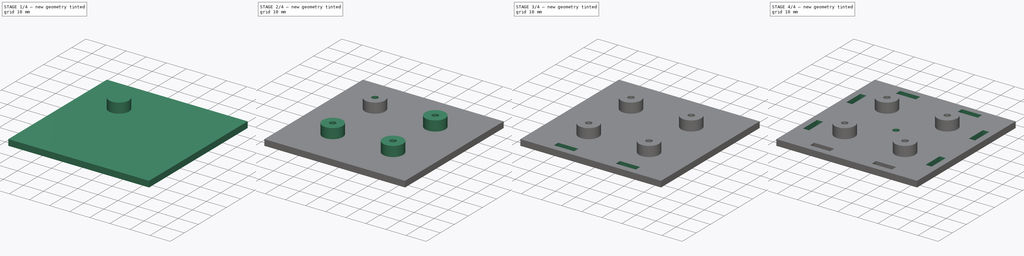
[diagram: build sequence overview — one tinted view per stage of 4, left to right]
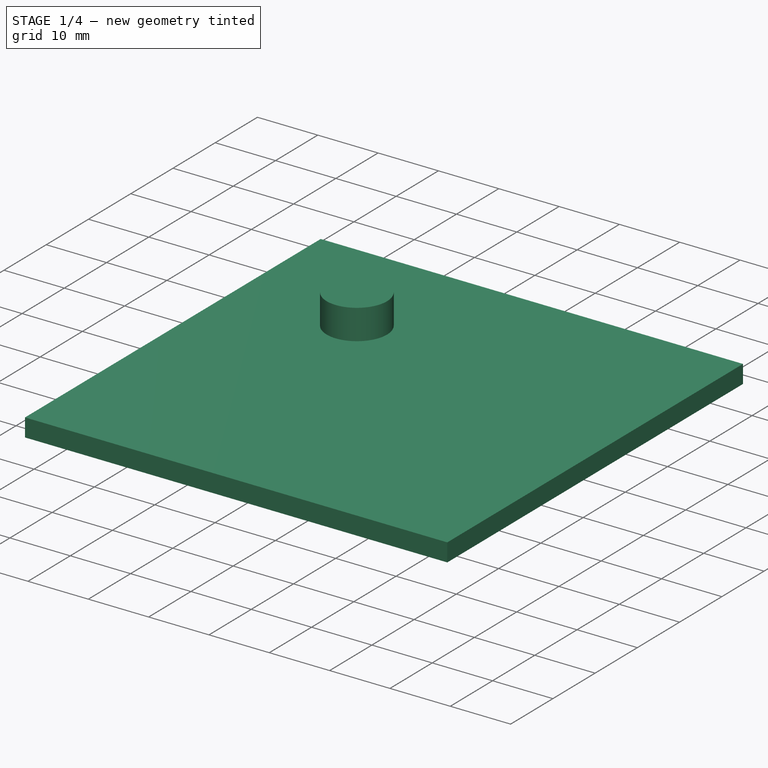
[diagram: stage 1 of 4 — iso view after this stage's code; geometry added in this stage tinted green]
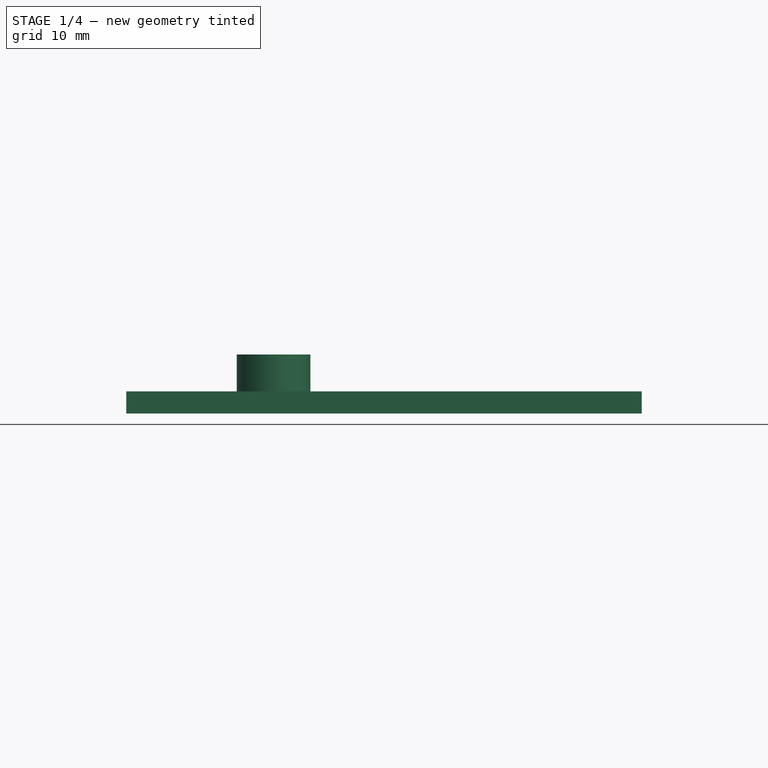
[diagram: stage 1 of 4 — front view after this stage's code; geometry added in this stage tinted green]
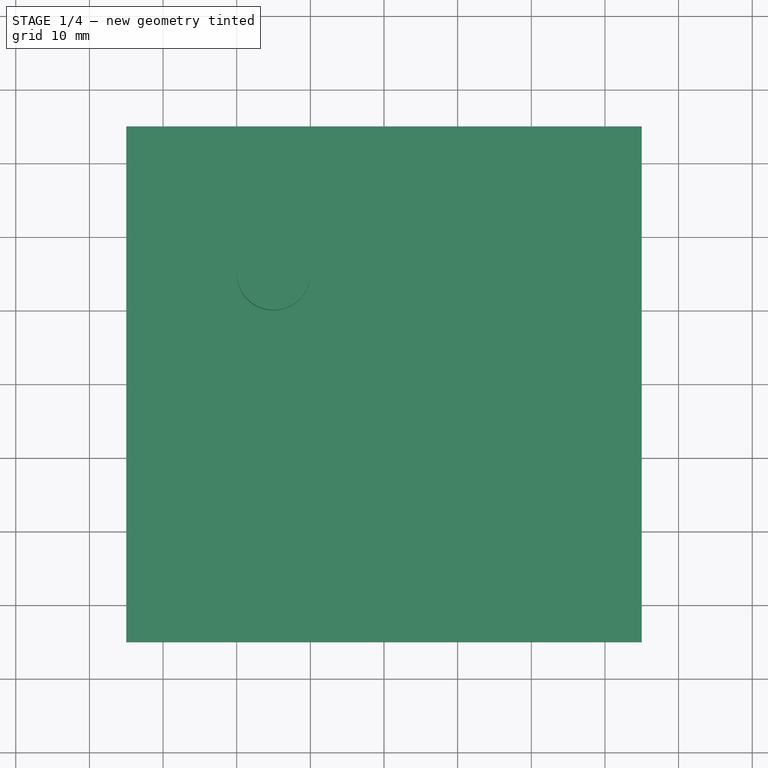
[diagram: stage 1 of 4 — top view after this stage's code; geometry added in this stage tinted green]
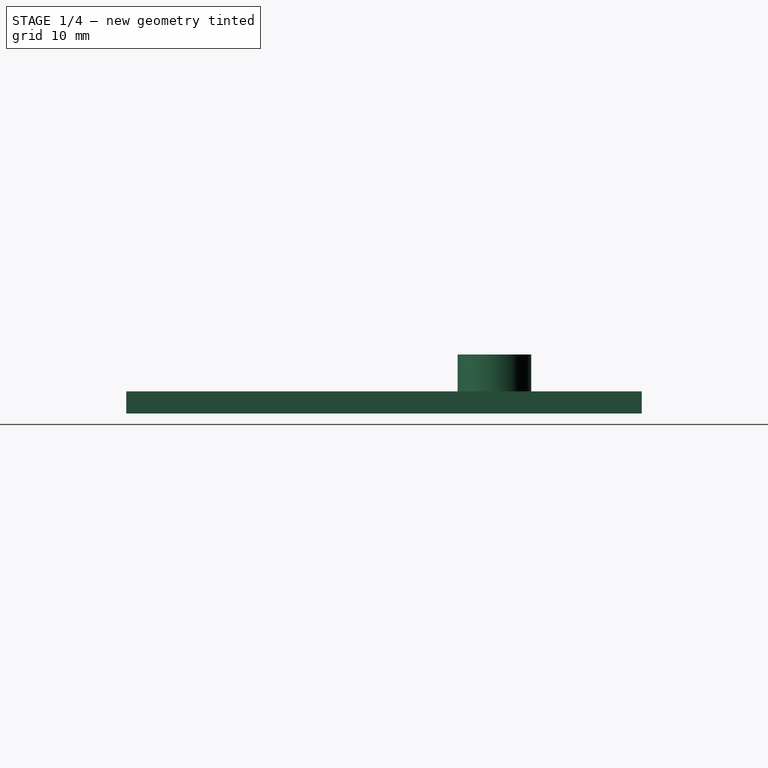
[diagram: stage 1 of 4 — right view after this stage's code; geometry added in this stage tinted green]
FCSTD DOCUMENT  (FreeCAD 0.14R3702 (Git))
Label: base-cuadrada
License: CC-BY 3.0
LicenseURL: http://creativecommons.org/licenses/by/3.0/
objects: Sketcher::SketchObject×6, PartDesign::PolarPattern×4, PartDesign::Pocket×4, Part::Extrusion×1, PartDesign::Pad×1
note: 21 computed .brp shape members not serialized (recipe doc carries the construction recipe); baked Part::Feature solids carry a one-line shape summary decoded from their .brp

FEATURE [Sketcher::SketchObject] Sketch  label="sk-main"
  sketch-geometry (4):
    g0: LineSegment StartX=-35 StartY=35 StartZ=0 EndX=35 EndY=35 EndZ=0
    g1: LineSegment StartX=35 StartY=35 StartZ=0 EndX=35 EndY=-35 EndZ=0
    g2: LineSegment StartX=35 StartY=-35 StartZ=0 EndX=-35 EndY=-35 EndZ=0
    g3: LineSegment StartX=-35 StartY=-35 StartZ=0 EndX=-35 EndY=35 EndZ=0
  constraints (12):
    c: Coincident(g0,g1)
    c: Coincident(g1,g2)
    c: Coincident(g2,g3)
    c: Coincident(g3,g0)
    c: Horizontal(g0)
    c: Horizontal(g2)
    c: Vertical(g1)
    c: Vertical(g3)
    c: Equal(g0,g3)
    c: Symmetric(g0,g0,g-2)
    c: Symmetric(g1,g0,g-1)
    c: DistanceY(g1) = -70
FEATURE [Part::Extrusion] Extrude  label="cuerpo-principal"
  Base = -> Sketch
  Dir = (0,0,3)
  Solid = true
FEATURE [Sketcher::SketchObject] Sketch001  label="sk-separador"
  ExternalGeometry = -> [Extrude]
  Placement = pos=(0,0,3) rot=(0,0,1;0rad)
  Support = -> Extrude [Face6]
  sketch-geometry (1):
    g0: Circle CenterX=-15 CenterY=15 CenterZ=0 NormalX=0 NormalY=0 NormalZ=1 Radius=5
  constraints (3):
    c: Radius(g0) = 5
    c: Distance(g0,g-3) = 20
    c: Distance(g0,g-4) = 20
FEATURE [PartDesign::Pad] Pad  label="pad-separador"
  Length = 5
  Length2 = 5
  Sketch = -> Sketch001
  Type = 0
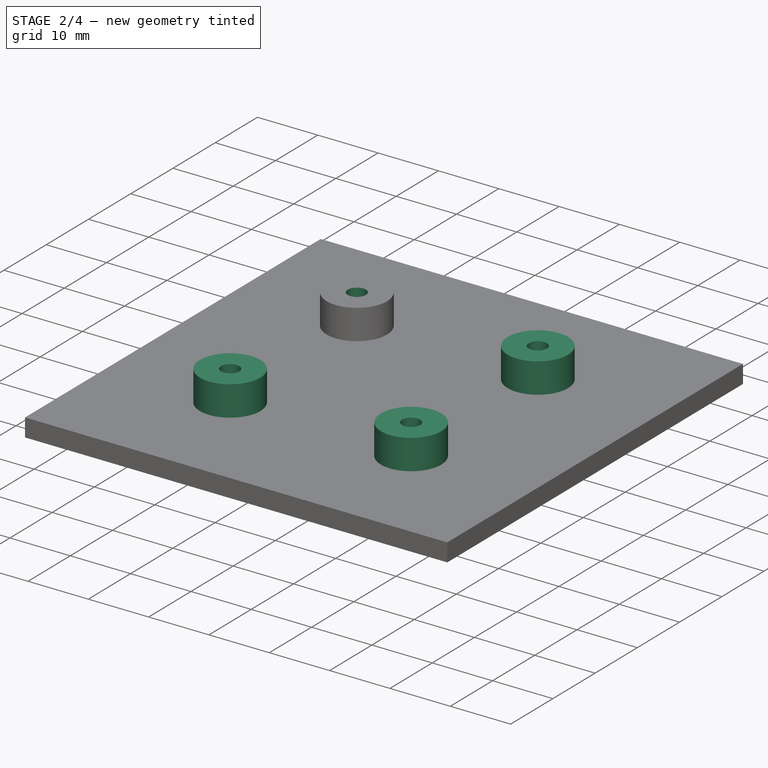
[diagram: stage 2 of 4 — iso view after this stage's code; geometry added in this stage tinted green]
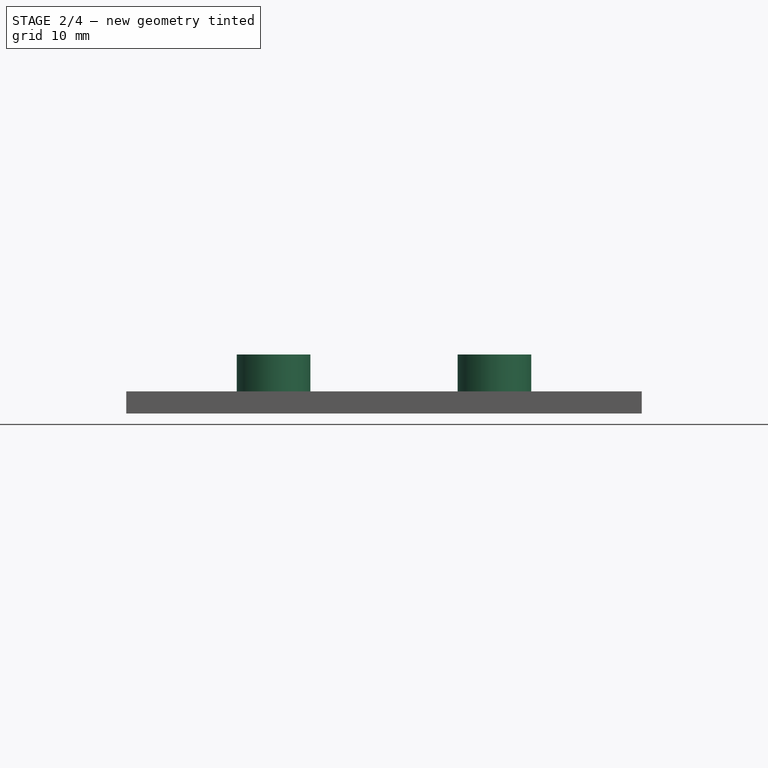
[diagram: stage 2 of 4 — front view after this stage's code; geometry added in this stage tinted green]
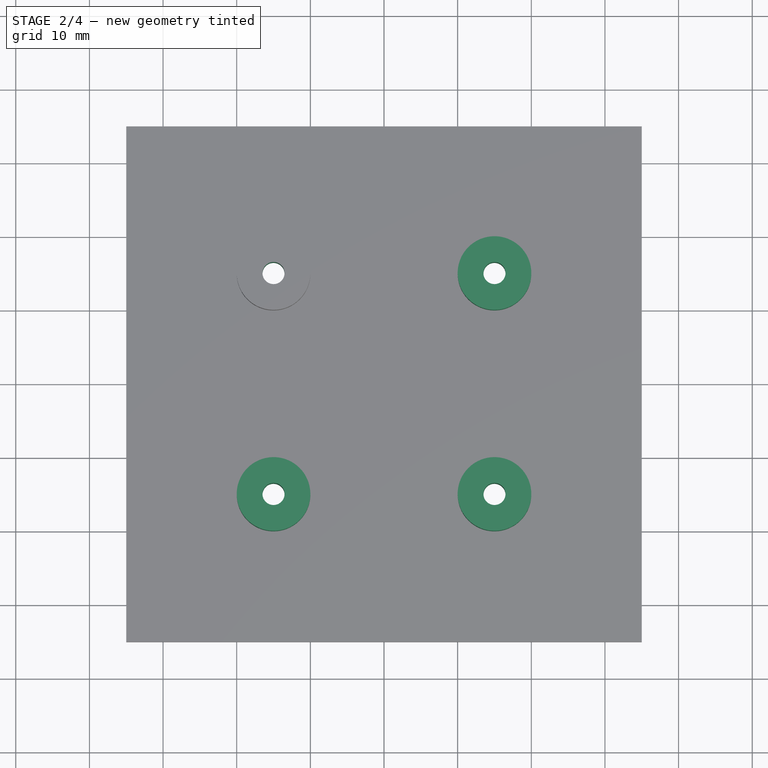
[diagram: stage 2 of 4 — top view after this stage's code; geometry added in this stage tinted green]
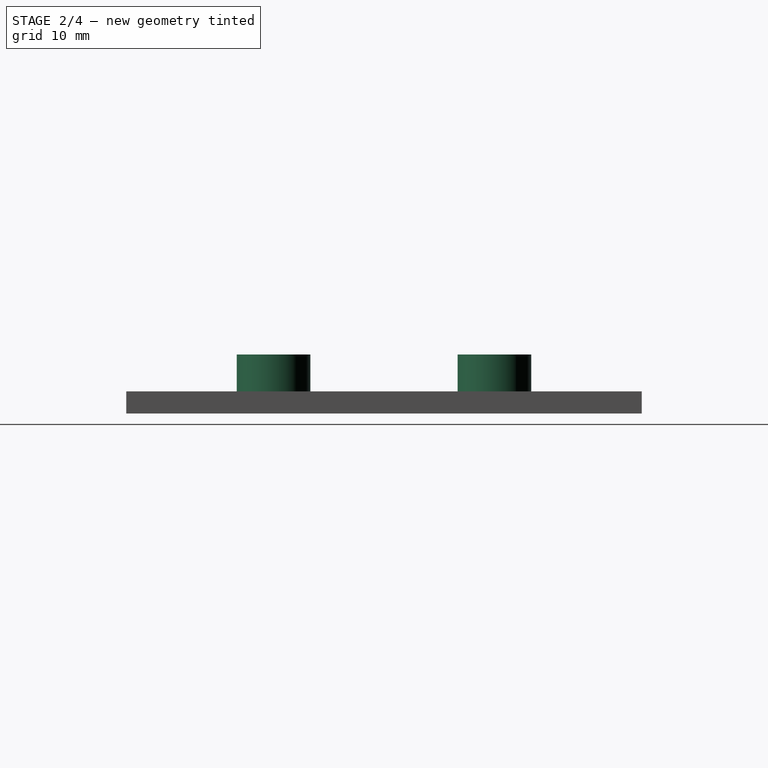
[diagram: stage 2 of 4 — right view after this stage's code; geometry added in this stage tinted green]
FEATURE [PartDesign::PolarPattern] PolarPattern  label="polar-4-separadores"
  Angle = 360
  Axis = -> Sketch001 [N_Axis]
  Occurrences = 4
  Originals = -> [Pad]
FEATURE [Sketcher::SketchObject] Sketch002  label="sk-taladro"
  ExternalGeometry = -> [PolarPattern]
  Placement = pos=(0,0,8) rot=(0,0,1;0rad)
  Support = -> PolarPattern [Face11]
  sketch-geometry (1):
    g0: Circle CenterX=-15 CenterY=15 CenterZ=0 NormalX=0 NormalY=0 NormalZ=1 Radius=1.5
  constraints (2):
    c: Coincident(g0,g-3)
    c: Radius(g0) = 1.5
FEATURE [PartDesign::Pocket] Pocket  label="pk-taladro"
  Length = 5
  Sketch = -> Sketch002
  Type = 1
FEATURE [PartDesign::PolarPattern] PolarPattern001  label="polar-4-taladros"
  Angle = 360
  Axis = -> Sketch002 [N_Axis]
  Occurrences = 4
  Originals = -> [Pocket]
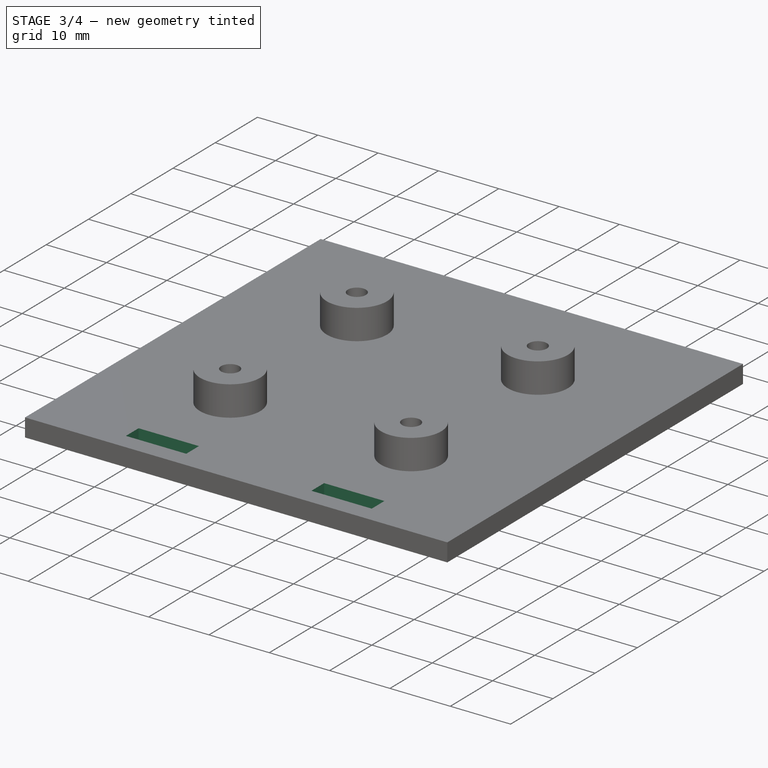
[diagram: stage 3 of 4 — iso view after this stage's code; geometry added in this stage tinted green]
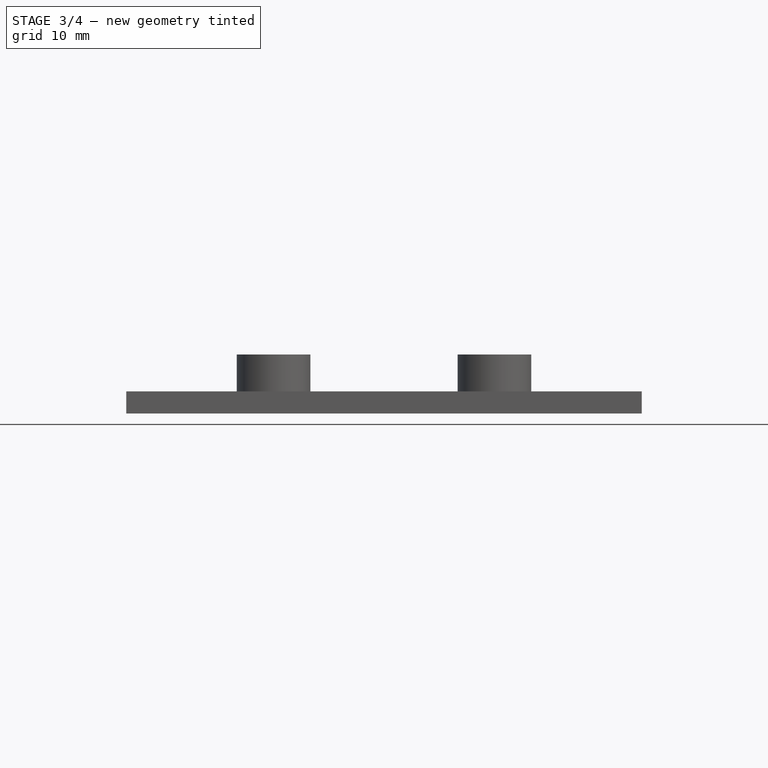
[diagram: stage 3 of 4 — front view after this stage's code; geometry added in this stage tinted green]
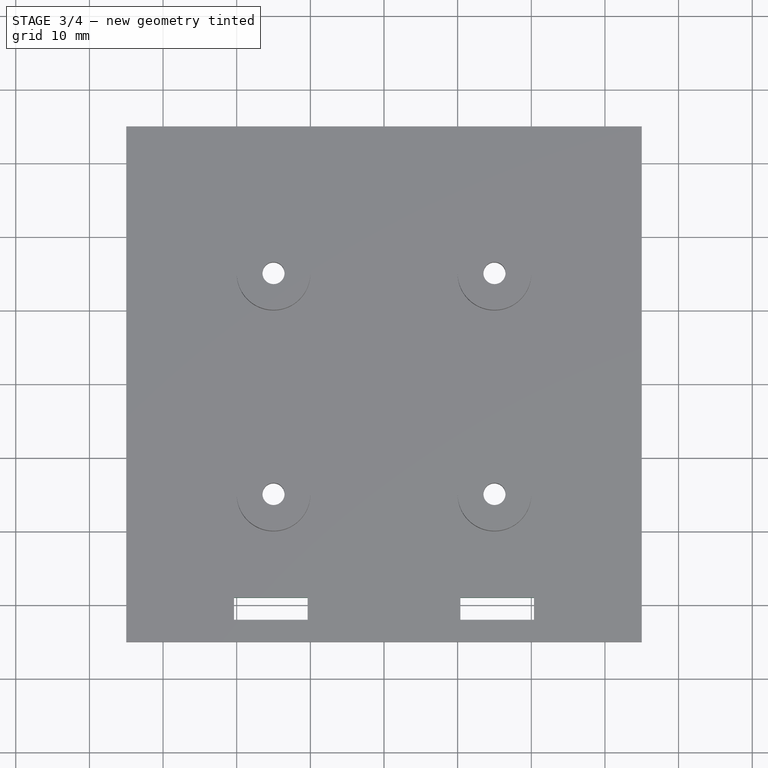
[diagram: stage 3 of 4 — top view after this stage's code; geometry added in this stage tinted green]
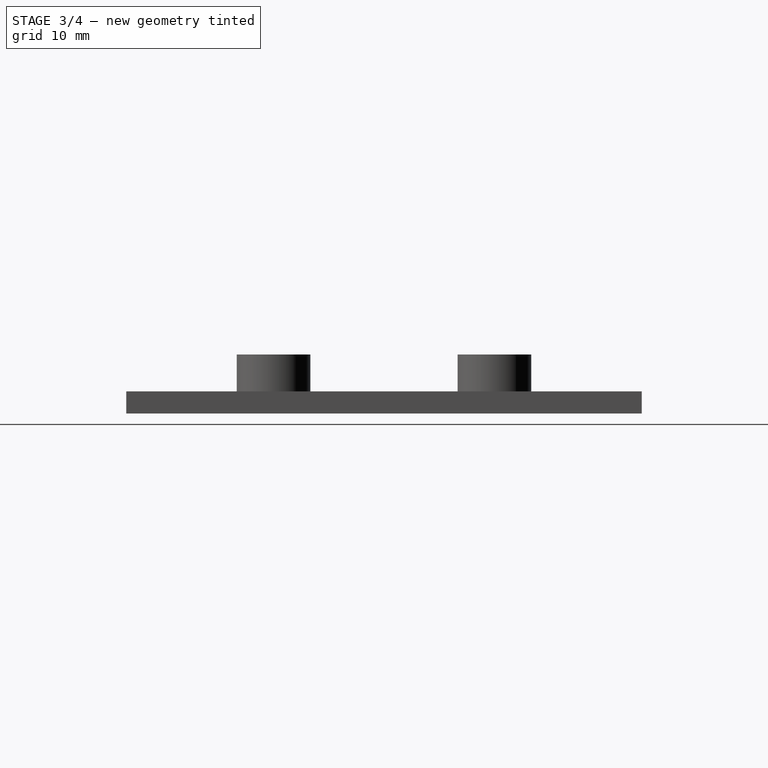
[diagram: stage 3 of 4 — right view after this stage's code; geometry added in this stage tinted green]
FEATURE [Sketcher::SketchObject] Sketch003  label="sk-hueco-cabeza-tornillo"
  ExternalGeometry = -> [PolarPattern001]
  Placement = pos=(0,0,0) rot=(1,0,0;3.14159rad)
  Support = -> PolarPattern001 [Face4]
  sketch-geometry (1):
    g0: Circle CenterX=-15 CenterY=15 CenterZ=0 NormalX=0 NormalY=0 NormalZ=1 Radius=3
  constraints (2):
    c: Coincident(g0,g-3)
    c: Radius(g0) = 3
FEATURE [PartDesign::Pocket] Pocket001  label="pk-hueco-cabeza-tornillo"
  Length = 2.5
  Sketch = -> Sketch003
  Type = 0
FEATURE [PartDesign::PolarPattern] PolarPattern002  label="polar-4-huecos-cabeza-tornillo"
  Angle = 360
  Axis = -> Sketch003 [N_Axis]
  Occurrences = 4
  Originals = -> [Pocket001]
FEATURE [Sketcher::SketchObject] Sketch004  label="sk-huecos-solapas"
  ExternalGeometry = -> [PolarPattern002]
  Placement = pos=(0,0,0) rot=(1,0,0;3.14159rad)
  Support = -> PolarPattern002 [Face4]
  sketch-geometry (8):
    g0: LineSegment StartX=10.3745 StartY=32 StartZ=0 EndX=20.3745 EndY=32 EndZ=0
    g1: LineSegment StartX=20.3745 StartY=32 StartZ=0 EndX=20.3745 EndY=29 EndZ=0
    g2: LineSegment StartX=20.3745 StartY=29 StartZ=0 EndX=10.3745 EndY=29 EndZ=0
    g3: LineSegment StartX=10.3745 StartY=29 StartZ=0 EndX=10.3745 EndY=32 EndZ=0
    g4: LineSegment StartX=-20.3745 StartY=32 StartZ=0 EndX=-10.3745 EndY=32 EndZ=0
    g5: LineSegment StartX=-10.3745 StartY=32 StartZ=0 EndX=-10.3745 EndY=29 EndZ=0
    g6: LineSegment StartX=-10.3745 StartY=29 StartZ=0 EndX=-20.3745 EndY=29 EndZ=0
    g7: LineSegment StartX=-20.3745 StartY=29 StartZ=0 EndX=-20.3745 EndY=32 EndZ=0
  constraints (22):
    c: Coincident(g0,g1)
    c: Coincident(g1,g2)
    c: Coincident(g2,g3)
    c: Coincident(g3,g0)
    c: Horizontal(g0)
    c: Horizontal(g2)
    c: Vertical(g1)
    c: Vertical(g3)
    c: Distance(g0,g-3) = 3
    c: DistanceY(g3) = 3
    c: DistanceX(g0) = 10
    c: Coincident(g4,g5)
    c: Coincident(g5,g6)
    c: Coincident(g6,g7)
    c: Coincident(g7,g4)
    c: Horizontal(g4)
    c: Horizontal(g6)
    c: Vertical(g5)
    c: Vertical(g7)
    c: Equal(g4,g0)
    c: Equal(g7,g3)
    c: Symmetric(g4,g0,g-2)
FEATURE [PartDesign::Pocket] Pocket002  label="pad-huecos-solapas"
  Length = 5
  Sketch = -> Sketch004
  Type = 0
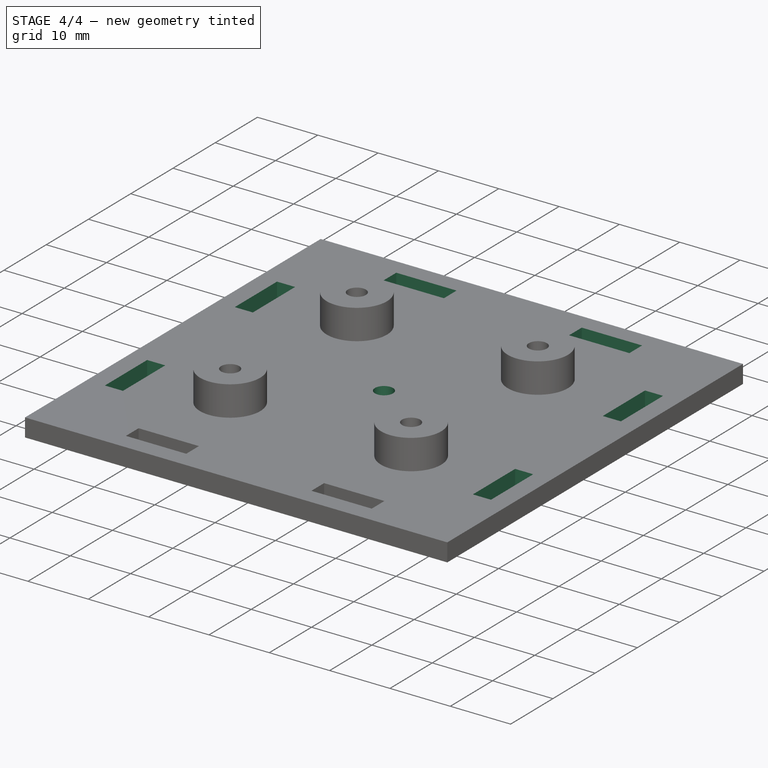
[diagram: stage 4 of 4 — iso view after this stage's code; geometry added in this stage tinted green]
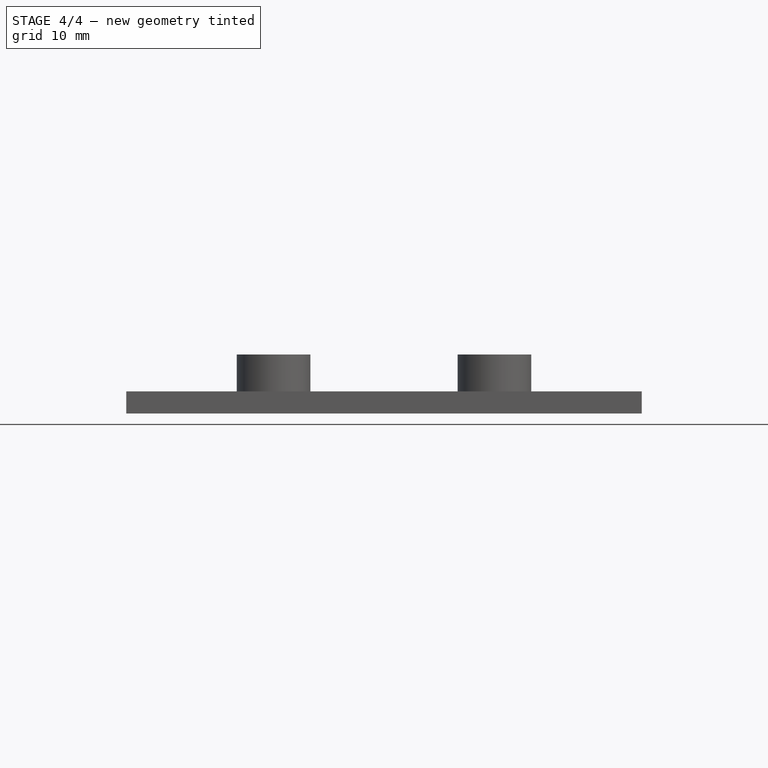
[diagram: stage 4 of 4 — front view after this stage's code; geometry added in this stage tinted green]
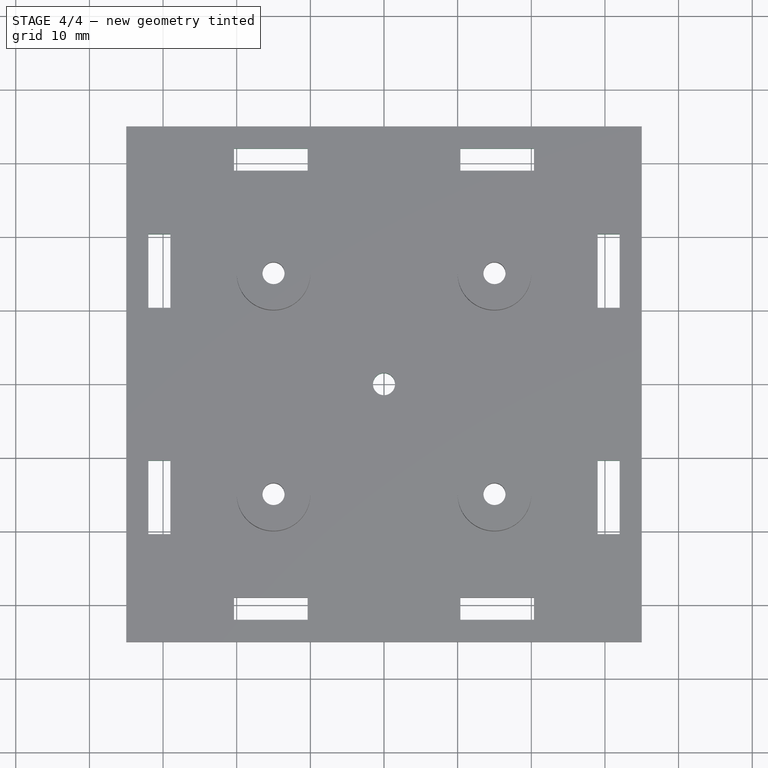
[diagram: stage 4 of 4 — top view after this stage's code; geometry added in this stage tinted green]
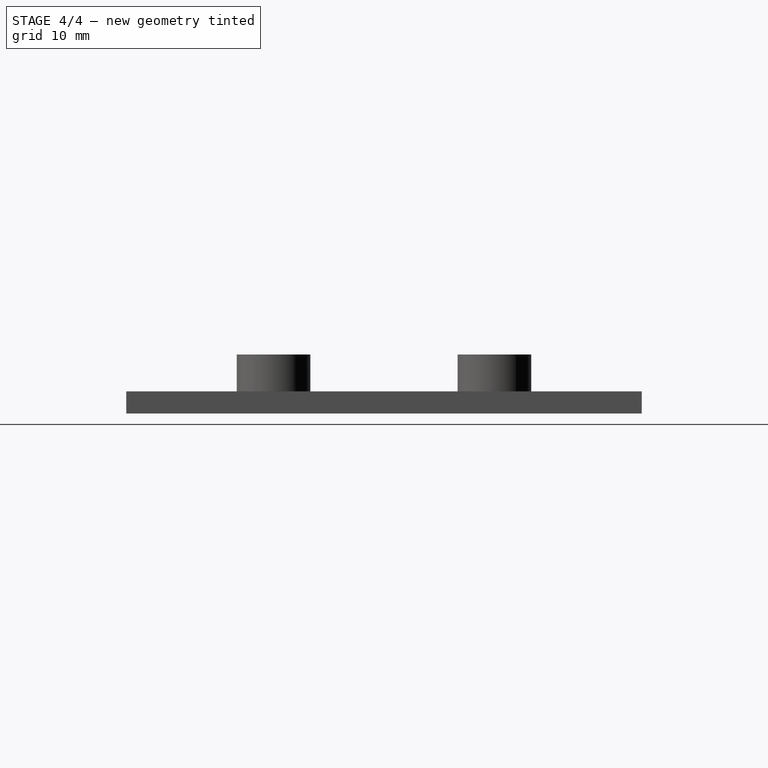
[diagram: stage 4 of 4 — right view after this stage's code; geometry added in this stage tinted green]
FEATURE [PartDesign::PolarPattern] PolarPattern002002  label="polar-4-huecos-solapas"
  Angle = 360
  Axis = -> Sketch004 [N_Axis]
  Occurrences = 4
  Originals = -> [Pocket002]
FEATURE [Sketcher::SketchObject] Sketch005  label="sk-agujero-central"
  Placement = pos=(0,0,0) rot=(1,0,0;3.14159rad)
  Support = -> PolarPattern002002 [Face4]
  sketch-geometry (1):
    g0: Circle CenterX=0 CenterY=0 CenterZ=0 NormalX=0 NormalY=0 NormalZ=1 Radius=1.5
  constraints (2):
    c: Radius(g0) = 1.5
    c: Coincident(g0,g-1)
FEATURE [PartDesign::Pocket] Pocket003  label="base-cuadrada"
  Length = 5
  Sketch = -> Sketch005
  Type = 1
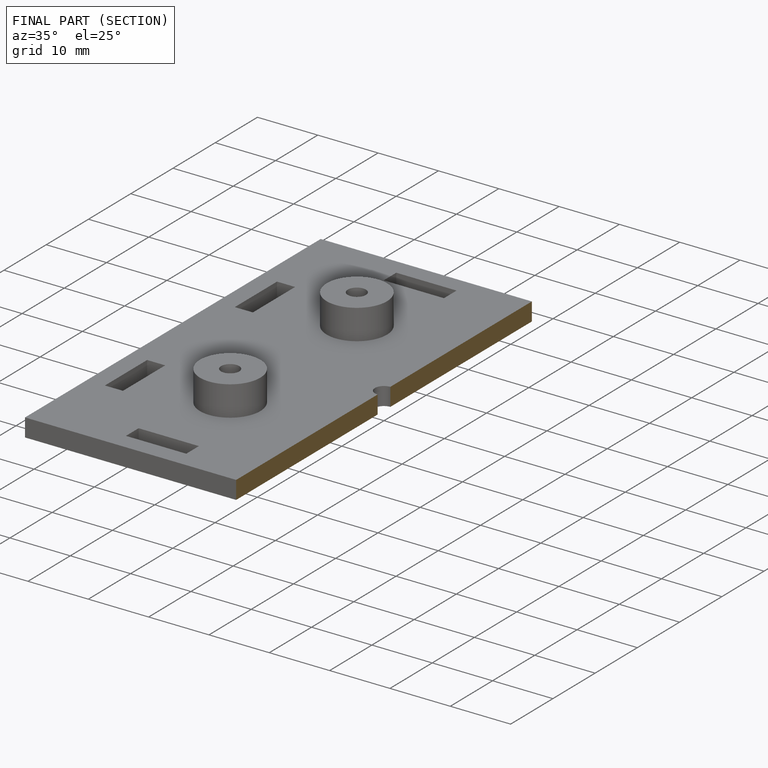
[diagram: finished part — half-section view (interior)]
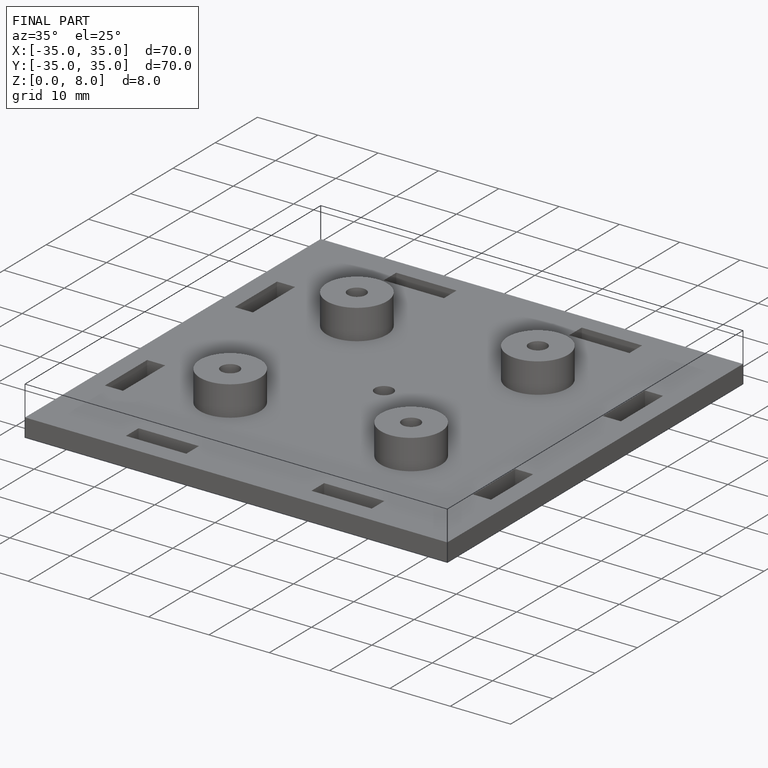
[diagram: finished part — iso view with bounding-box wireframe]
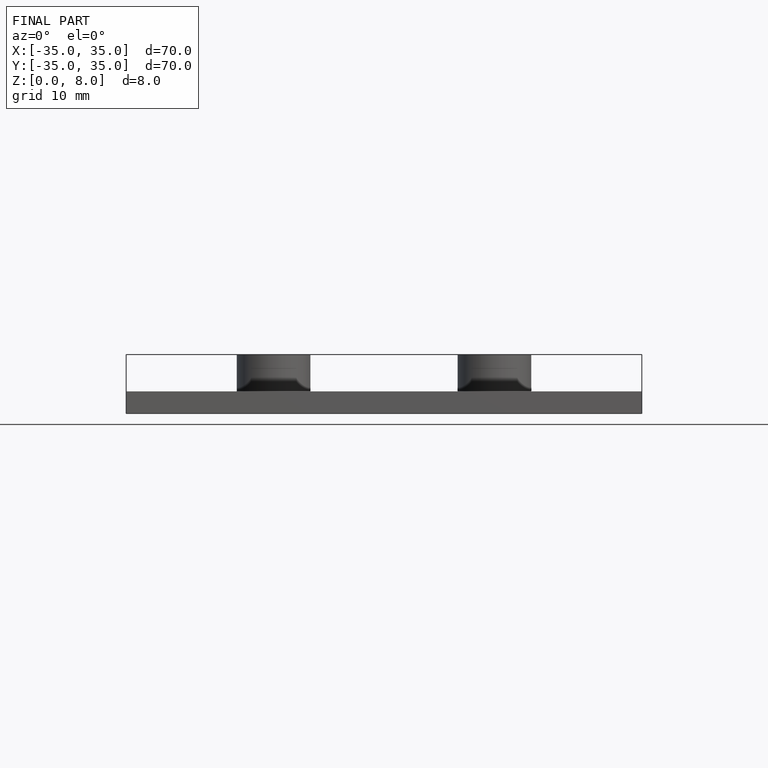
[diagram: finished part — front view with bounding-box wireframe]
